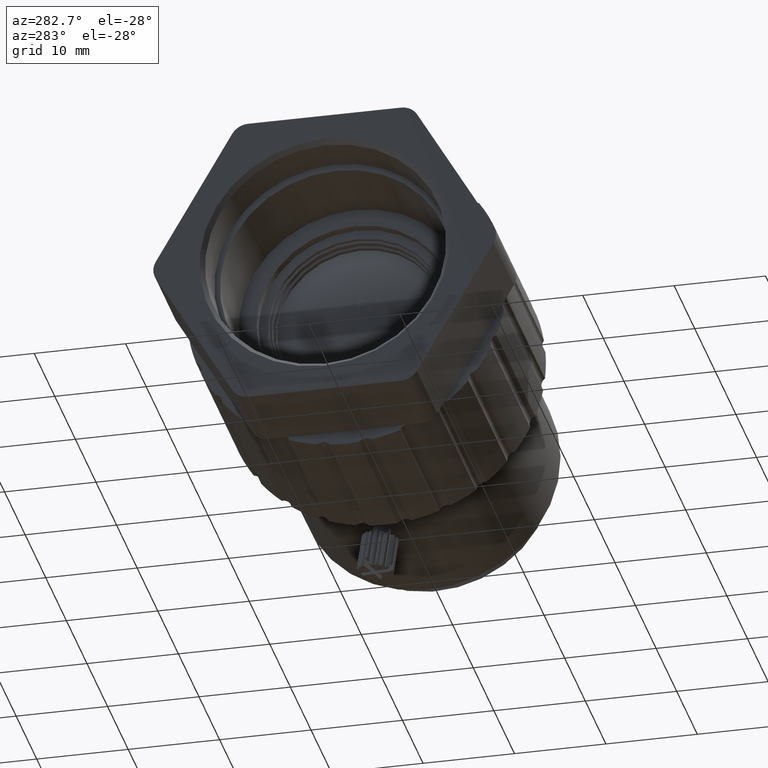
[diagram: clean part render]
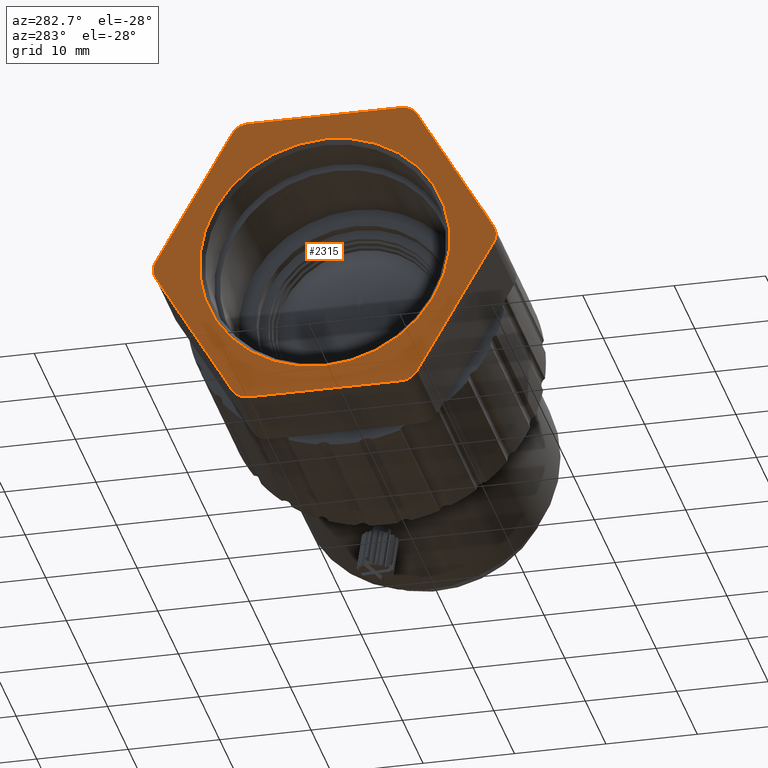
[diagram: same view with one face highlighted and labeled with its STEP entity id]
A machine part, auxiliary view. The second image highlights one B-rep face of the part: STEP entity #2315.
In plain terms, the highlighted planar face has unit normal (1, 0, 0).
Its self-contained STEP definition (entity closure, byte-faithful):
#29 = ORIENTED_EDGE ( 'NONE', *, *, #4150, .F. ) ;
#86 = EDGE_CURVE ( 'NONE', #10330, #13327, #15162, .T. ) ;
#119 = DIRECTION ( 'NONE',  ( 1.000000000000000000, -0.000000000000000000, -0.000000000000000000 ) ) ;
#846 = CARTESIAN_POINT ( 'NONE',  ( -37.78612033146355742, -15.13450515225756021, 14.50000000000062528 ) ) ;
#922 = DIRECTION ( 'NONE',  ( 0.000000000000000000, 0.000000000000000000, 1.000000000000000000 ) ) ;
#937 = EDGE_CURVE ( 'NONE', #5593, #6682, #4657, .T. ) ;
#984 = DIRECTION ( 'NONE',  ( 0.000000000000000000, 8.673617379884035472E-16, 1.000000000000000000 ) ) ;
#1091 = ORIENTED_EDGE ( 'NONE', *, *, #13091, .F. ) ;
#1141 = VERTEX_POINT ( 'NONE', #11390 ) ;
#1541 = CARTESIAN_POINT ( 'NONE',  ( -37.78612033146355742, -6.762926249008316404, 13.69836182982898087 ) ) ;
#1758 = CARTESIAN_POINT ( 'NONE',  ( -37.78612033146355742, 1.608652654240039226, 16.50000000000062172 ) ) ;
#1797 = DIRECTION ( 'NONE',  ( 0.000000000000000000, 1.734723475976807094E-15, 1.000000000000000000 ) ) ;
#1810 = EDGE_CURVE ( 'NONE', #13327, #1141, #7037, .T. ) ;
#1956 = AXIS2_PLACEMENT_3D ( 'NONE', #846, #12903, #922 ) ;
#2047 = CARTESIAN_POINT ( 'NONE',  ( -37.78612033146355742, -16.28920569063740942, -16.50000000000061817 ) ) ;
#2302 = ORIENTED_EDGE ( 'NONE', *, *, #86, .F. ) ;
#2315 = ADVANCED_FACE ( 'NONE', ( #12644, #7767 ), #7844, .F. ) ;
#2813 = DIRECTION ( 'NONE',  ( 0.000000000000000000, 0.4999999999999841793, 0.8660254037844478114 ) ) ;
#2842 = EDGE_CURVE ( 'NONE', #1141, #13242, #4336, .T. ) ;
#2895 = ORIENTED_EDGE ( 'NONE', *, *, #2842, .F. ) ;
#2928 = VECTOR ( 'NONE', #14004, 1000.000000000000000 ) ;
#3110 = CARTESIAN_POINT ( 'NONE',  ( -37.78612033146355742, 12.28963263424898145, -9.994629816108912360E-13 ) ) ;
#3142 = DIRECTION ( 'NONE',  ( 0.000000000000000000, 0.000000000000000000, -1.000000000000000000 ) ) ;
#3513 = CARTESIAN_POINT ( 'NONE',  ( -37.78612033146355742, -16.86655595982688993, 15.50000000000063061 ) ) ;
#3582 = ORIENTED_EDGE ( 'NONE', *, *, #9242, .F. ) ;
#3680 = VECTOR ( 'NONE', #12952, 999.9999999999998863 ) ;
#3719 = EDGE_LOOP ( 'NONE', ( #10793, #2302, #6972, #11211, #29, #3582, #4439, #6347, #9060, #10777, #4984, #2895 ) ) ;
#3871 = VECTOR ( 'NONE', #2813, 1000.000000000000000 ) ;
#4030 = DIRECTION ( 'NONE',  ( 1.000000000000000000, -0.000000000000000000, -0.000000000000000000 ) ) ;
#4044 = CARTESIAN_POINT ( 'NONE',  ( -37.78612033146355742, -15.13450515225844839, -16.50000000000061817 ) ) ;
#4088 = AXIS2_PLACEMENT_3D ( 'NONE', #5929, #10638, #4753 ) ;
#4103 = CARTESIAN_POINT ( 'NONE',  ( -37.78612033146355742, -23.50608405550858038, -1.054711873393898713E-12 ) ) ;
#4105 = AXIS2_PLACEMENT_3D ( 'NONE', #5039, #9905, #1797 ) ;
#4150 = EDGE_CURVE ( 'NONE', #14391, #12281, #10754, .T. ) ;
#4336 = LINE ( 'NONE', #3110, #3871 ) ;
#4439 = ORIENTED_EDGE ( 'NONE', *, *, #937, .F. ) ;
#4657 = CIRCLE ( 'NONE', #1956, 2.000000000000000000 ) ;
#4704 = EDGE_CURVE ( 'NONE', #13242, #14892, #10241, .T. ) ;
#4753 = DIRECTION ( 'NONE',  ( 0.000000000000000000, -3.469446951953614189E-15, 1.000000000000000000 ) ) ;
#4826 = CARTESIAN_POINT ( 'NONE',  ( -37.78612033146355742, 2.763353192619000254, 16.50000000000062172 ) ) ;
#4984 = ORIENTED_EDGE ( 'NONE', *, *, #4704, .F. ) ;
#5039 = CARTESIAN_POINT ( 'NONE',  ( -37.78612033146355742, 1.608652654240927404, -14.50000000000062172 ) ) ;
#5267 = DIRECTION ( 'NONE',  ( 0.000000000000000000, 0.000000000000000000, 1.000000000000000000 ) ) ;
#5315 = LINE ( 'NONE', #12268, #14291 ) ;
#5593 = VERTEX_POINT ( 'NONE', #5780 ) ;
#5605 = LINE ( 'NONE', #2047, #11581 ) ;
#5657 = CARTESIAN_POINT ( 'NONE',  ( -37.78612033146355742, 11.71228236505861275, 0.9999999999999267253 ) ) ;
#5697 = CARTESIAN_POINT ( 'NONE',  ( -37.78612033146355742, 1.608652654240927404, -16.50000000000062172 ) ) ;
#5747 = CARTESIAN_POINT ( 'NONE',  ( -37.78612033146355742, -15.13450515225844839, -14.50000000000061817 ) ) ;
#5780 = CARTESIAN_POINT ( 'NONE',  ( -37.78612033146355742, -15.13450515225756021, 16.50000000000062528 ) ) ;
#5872 = EDGE_CURVE ( 'NONE', #7574, #5593, #5315, .T. ) ;
#5884 = CARTESIAN_POINT ( 'NONE',  ( -37.78612033146355742, 2.763353192620776611, -16.50000000000062172 ) ) ;
#5901 = CARTESIAN_POINT ( 'NONE',  ( -37.78612033146355742, -25.81548513226650243, -3.192368800205843644E-13 ) ) ;
#5929 = CARTESIAN_POINT ( 'NONE',  ( -37.78612033146355742, 9.980231557490171213, -2.896988204881267848E-13 ) ) ;
#6074 = AXIS2_PLACEMENT_3D ( 'NONE', #4103, #4030, #5267 ) ;
#6202 = DIRECTION ( 'NONE',  ( 0.000000000000000000, -0.4999999999999890088, -0.8660254037844449249 ) ) ;
#6347 = ORIENTED_EDGE ( 'NONE', *, *, #5872, .F. ) ;
#6410 = VERTEX_POINT ( 'NONE', #1541 ) ;
#6413 = EDGE_CURVE ( 'NONE', #14892, #11731, #14348, .T. ) ;
#6601 = EDGE_CURVE ( 'NONE', #12281, #12258, #5605, .T. ) ;
#6682 = VERTEX_POINT ( 'NONE', #3513 ) ;
#6688 = CARTESIAN_POINT ( 'NONE',  ( -37.78612033146355742, 11.71228236505950093, -1.000000000000655254 ) ) ;
#6812 = DIRECTION ( 'NONE',  ( 1.000000000000000000, -0.000000000000000000, -0.000000000000000000 ) ) ;
#6972 = ORIENTED_EDGE ( 'NONE', *, *, #12743, .F. ) ;
#7037 = CIRCLE ( 'NONE', #4105, 2.000000000000000000 ) ;
#7113 = LINE ( 'NONE', #5901, #7864 ) ;
#7398 = CARTESIAN_POINT ( 'NONE',  ( -37.78612033146355742, -16.86655595982688993, -15.50000000000063949 ) ) ;
#7462 = DIRECTION ( 'NONE',  ( 0.000000000000000000, -1.000000000000000000, 1.820987392408797138E-16 ) ) ;
#7574 = VERTEX_POINT ( 'NONE', #1758 ) ;
#7593 = EDGE_LOOP ( 'NONE', ( #1091 ) ) ;
#7698 = CARTESIAN_POINT ( 'NONE',  ( -37.78612033146355742, 5806.353005170729375, 8.881784197001252323E-13 ) ) ;
#7767 = FACE_OUTER_BOUND ( 'NONE', #3719, .T. ) ;
#7840 = DIRECTION ( 'NONE',  ( 0.000000000000000000, 0.5000000000000037748, -0.8660254037844364872 ) ) ;
#7844 = PLANE ( 'NONE',  #10521 ) ;
#7864 = VECTOR ( 'NONE', #6202, 1000.000000000000114 ) ;
#7898 = AXIS2_PLACEMENT_3D ( 'NONE', #10710, #119, #984 ) ;
#8639 = AXIS2_PLACEMENT_3D ( 'NONE', #10952, #13271, #12120 ) ;
#9060 = ORIENTED_EDGE ( 'NONE', *, *, #13045, .F. ) ;
#9242 = EDGE_CURVE ( 'NONE', #6682, #14391, #7113, .T. ) ;
#9608 = CIRCLE ( 'NONE', #11354, 2.000000000000000000 ) ;
#9905 = DIRECTION ( 'NONE',  ( 1.000000000000000000, -0.000000000000000000, -0.000000000000000000 ) ) ;
#10241 = CIRCLE ( 'NONE', #4088, 2.000000000000000000 ) ;
#10330 = VERTEX_POINT ( 'NONE', #4044 ) ;
#10381 = CIRCLE ( 'NONE', #8639, 13.69836182982809270 ) ;
#10521 = AXIS2_PLACEMENT_3D ( 'NONE', #7698, #12573, #3142 ) ;
#10638 = DIRECTION ( 'NONE',  ( 1.000000000000000000, -0.000000000000000000, -0.000000000000000000 ) ) ;
#10710 = CARTESIAN_POINT ( 'NONE',  ( -37.78612033146355742, 1.608652654240039226, 14.50000000000062172 ) ) ;
#10754 = CIRCLE ( 'NONE', #6074, 2.000000000000000000 ) ;
#10777 = ORIENTED_EDGE ( 'NONE', *, *, #6413, .F. ) ;
#10793 = ORIENTED_EDGE ( 'NONE', *, *, #1810, .F. ) ;
#10952 = CARTESIAN_POINT ( 'NONE',  ( -37.78612033146355742, -6.762926249008316404, 8.881784197001252323E-13 ) ) ;
#11211 = ORIENTED_EDGE ( 'NONE', *, *, #6601, .F. ) ;
#11354 = AXIS2_PLACEMENT_3D ( 'NONE', #5747, #6812, #15249 ) ;
#11390 = CARTESIAN_POINT ( 'NONE',  ( -37.78612033146355742, 3.340703461810257124, -15.50000000000061817 ) ) ;
#11581 = VECTOR ( 'NONE', #7840, 999.9999999999998863 ) ;
#11731 = VERTEX_POINT ( 'NONE', #14084 ) ;
#12120 = DIRECTION ( 'NONE',  ( 0.000000000000000000, 0.000000000000000000, 1.000000000000000000 ) ) ;
#12133 = CARTESIAN_POINT ( 'NONE',  ( -37.78612033146355742, -25.23813486307702192, -1.000000000001208589 ) ) ;
#12258 = VERTEX_POINT ( 'NONE', #7398 ) ;
#12268 = CARTESIAN_POINT ( 'NONE',  ( -37.78612033146355742, -16.28920569063740942, 16.50000000000062528 ) ) ;
#12281 = VERTEX_POINT ( 'NONE', #12133 ) ;
#12573 = DIRECTION ( 'NONE',  ( 1.000000000000000000, 0.000000000000000000, 0.000000000000000000 ) ) ;
#12644 = FACE_BOUND ( 'NONE', #7593, .T. ) ;
#12743 = EDGE_CURVE ( 'NONE', #12258, #10330, #9608, .T. ) ;
#12903 = DIRECTION ( 'NONE',  ( 1.000000000000000000, -0.000000000000000000, -0.000000000000000000 ) ) ;
#12952 = DIRECTION ( 'NONE',  ( 0.000000000000000000, -0.5000000000000085487, 0.8660254037844338226 ) ) ;
#13045 = EDGE_CURVE ( 'NONE', #11731, #7574, #13341, .T. ) ;
#13091 = EDGE_CURVE ( 'NONE', #6410, #6410, #10381, .T. ) ;
#13242 = VERTEX_POINT ( 'NONE', #6688 ) ;
#13271 = DIRECTION ( 'NONE',  ( -1.000000000000000000, 0.000000000000000000, 0.000000000000000000 ) ) ;
#13327 = VERTEX_POINT ( 'NONE', #5697 ) ;
#13341 = CIRCLE ( 'NONE', #7898, 2.000000000000000000 ) ;
#14004 = DIRECTION ( 'NONE',  ( 0.000000000000000000, 1.000000000000000000, -1.820987392408627040E-16 ) ) ;
#14084 = CARTESIAN_POINT ( 'NONE',  ( -37.78612033146355742, 3.340703461808480768, 15.50000000000065548 ) ) ;
#14127 = CARTESIAN_POINT ( 'NONE',  ( -37.78612033146355742, -25.23813486307702192, 0.9999999999991318056 ) ) ;
#14291 = VECTOR ( 'NONE', #7462, 1000.000000000000000 ) ;
#14348 = LINE ( 'NONE', #4826, #3680 ) ;
#14391 = VERTEX_POINT ( 'NONE', #14127 ) ;
#14892 = VERTEX_POINT ( 'NONE', #5657 ) ;
#15162 = LINE ( 'NONE', #5884, #2928 ) ;
#15249 = DIRECTION ( 'NONE',  ( 0.000000000000000000, 2.602085213965210642E-15, 1.000000000000000000 ) ) ;